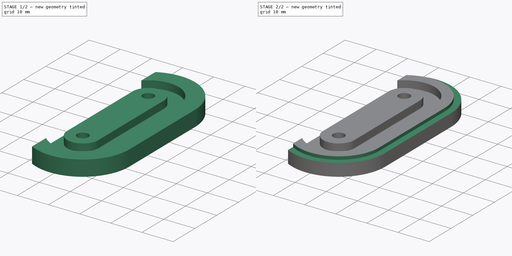
[diagram: build sequence overview — one tinted view per stage of 2, left to right]
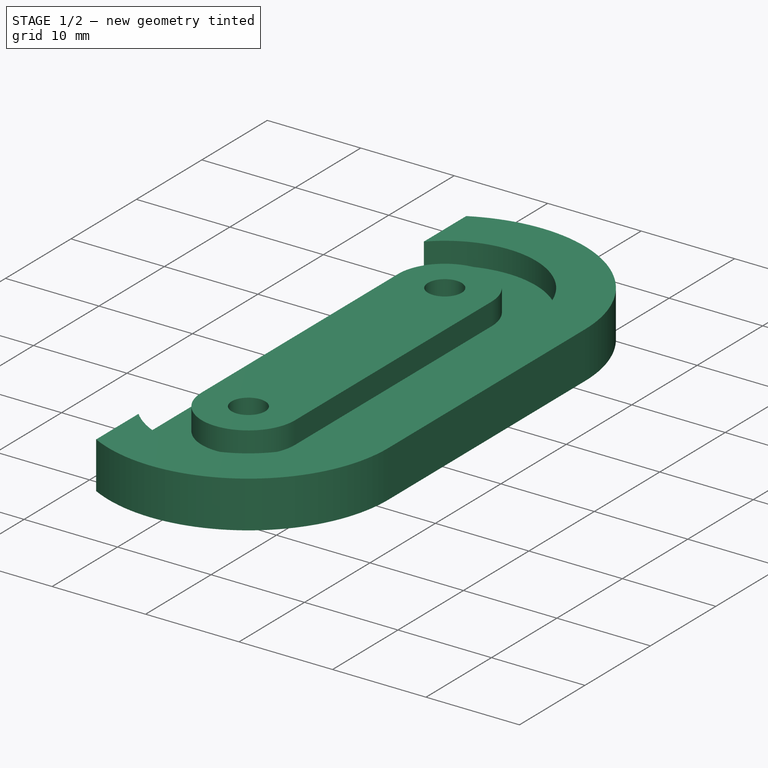
[diagram: stage 1 of 2 — iso view after this stage's code; geometry added in this stage tinted green]
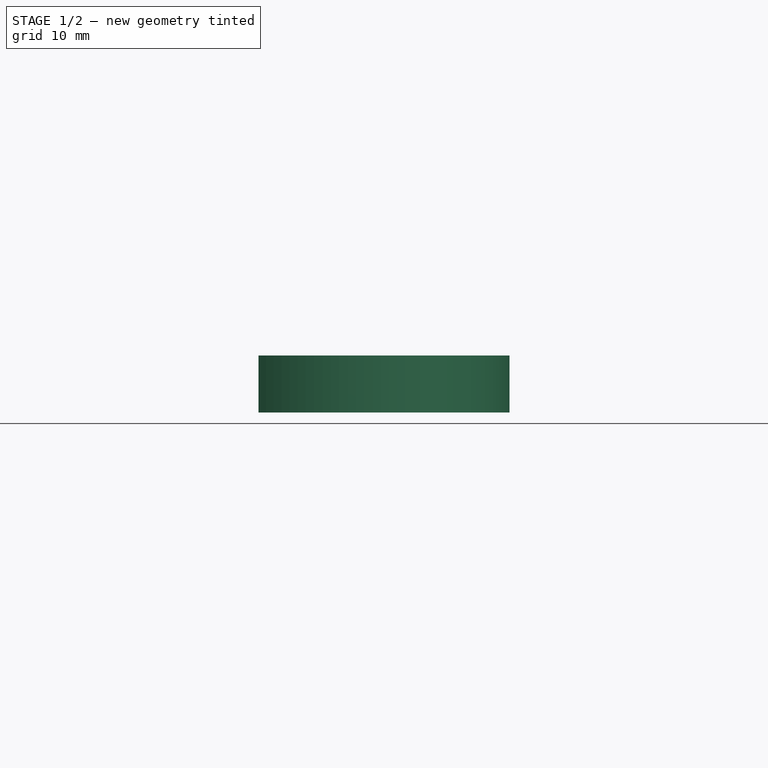
[diagram: stage 1 of 2 — front view after this stage's code; geometry added in this stage tinted green]
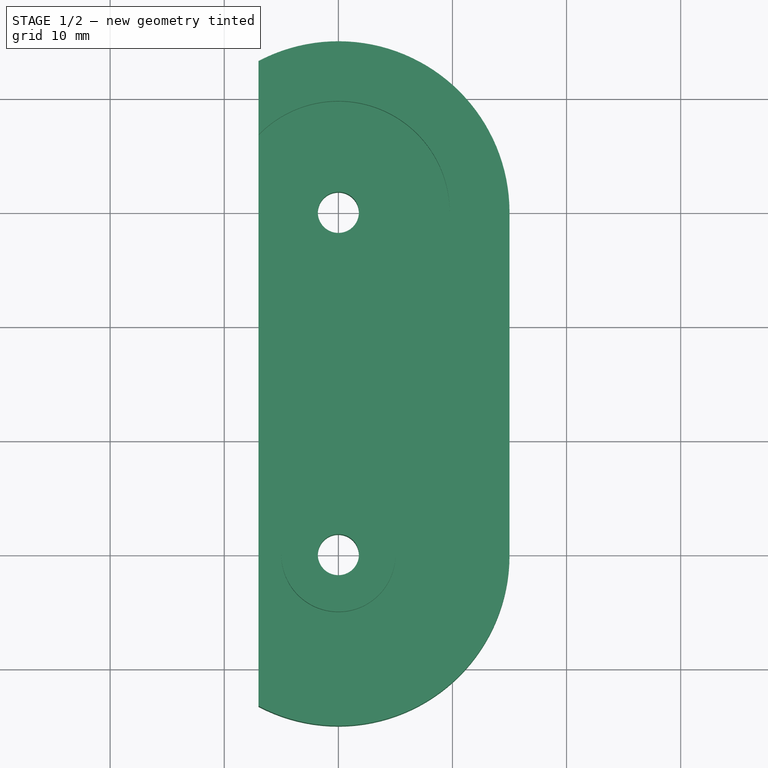
[diagram: stage 1 of 2 — top view after this stage's code; geometry added in this stage tinted green]
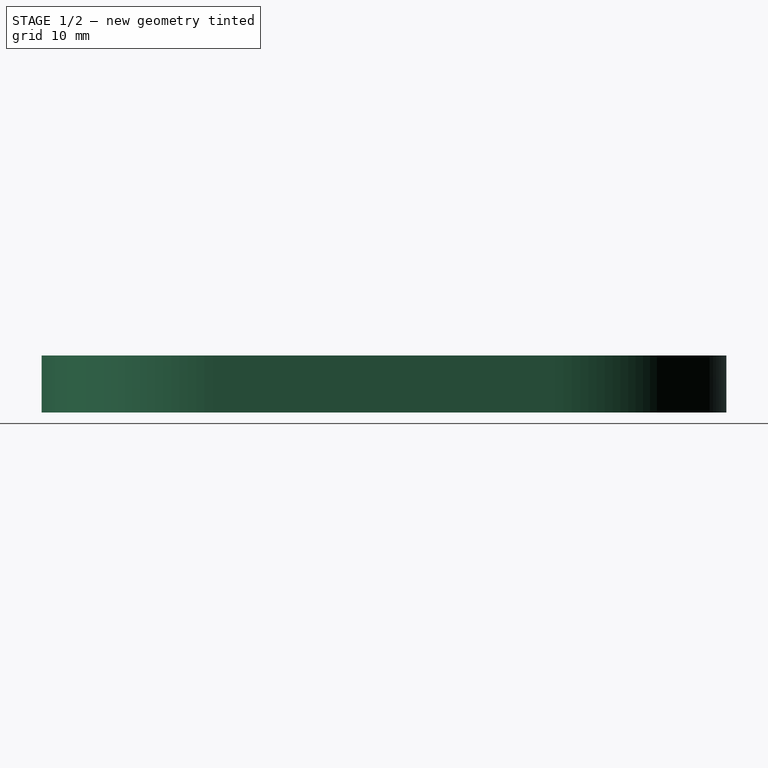
[diagram: stage 1 of 2 — right view after this stage's code; geometry added in this stage tinted green]
FCSTD DOCUMENT
Label: RecircBall
objects: Sketcher::SketchObject×4, PartDesign::Pocket×3, PartDesign::Pad×1
note: 9 computed .brp shape members not serialized (recipe doc carries the construction recipe); baked Part::Feature solids carry a one-line shape summary decoded from their .brp

FEATURE [Sketcher::SketchObject] Sketch
  sketch-geometry (9):
    g0: ArcOfCircle CenterX=0 CenterY=0 CenterZ=0 NormalX=0 NormalY=0 NormalZ=1 Radius=15 StartAngle=4.22687 EndAngle=6.28319
    g1: ArcOfCircle CenterX=0 CenterY=30 CenterZ=0 NormalX=0 NormalY=0 NormalZ=1 Radius=15 StartAngle=0 EndAngle=2.05631
    g2: LineSegment StartX=15 StartY=30 StartZ=0 EndX=15 EndY=0 EndZ=0
    g3: LineSegment StartX=-7 StartY=43.2665 StartZ=0 EndX=-7 EndY=-13.2665 EndZ=0
    g4: Circle CenterX=0 CenterY=30 CenterZ=0 NormalX=0 NormalY=0 NormalZ=1 Radius=1.8
    g5: Circle CenterX=0 CenterY=0 CenterZ=0 NormalX=0 NormalY=0 NormalZ=1 Radius=1.8
    g6: LineSegment [constr] StartX=0 StartY=30 StartZ=0 EndX=15 EndY=30 EndZ=0
    g7: LineSegment [constr] StartX=0 StartY=0 StartZ=0 EndX=15 EndY=0 EndZ=0
    g8: LineSegment [constr] StartX=0 StartY=0 StartZ=0 EndX=-7 EndY=0 EndZ=0
  constraints (25):
    c: Coincident(g2,g1)
    c: Vertical(g2)
    c: Coincident(g0,g2)
    c: Coincident(g3,g1)
    c: Coincident(g3,g0)
    c: Vertical(g3)
    c: Coincident(g4,g1)
    c: Coincident(g5,g0)
    c: Equal(g5,g4)
    c: Radius(g4) = 1.8
    c: Coincident(g6,g1)
    c: Coincident(g6,g1)
    c: Horizontal(g6)
    c: Coincident(g7,g0)
    c: Coincident(g7,g0)
    c: Horizontal(g7)
    c: Coincident(g8,g0)
    c: PointOnObject(g8,g3)
    c: Horizontal(g8)
    c: Radius(g1) = 15
    c: DistanceY(g1,g0) = -30
    c: DistanceX(g8) = -7
    c: Equal(g1,g0)
    c: DistanceX(g0) = 0
    c: DistanceY(g0) = 0
FEATURE [PartDesign::Pad] Pad
  Length = 5
  MirroredExtent = false
  Sketch = -> Sketch
FEATURE [Sketcher::SketchObject] Sketch001
  Placement = pos=(0,0,5) rot=(0,0,1;0rad)
  Support = -> Pad [Face8]
  sketch-geometry (15):
    g0: ArcOfCircle CenterX=0 CenterY=30 CenterZ=0 NormalX=0 NormalY=0 NormalZ=1 Radius=5 StartAngle=0 EndAngle=3.14159
    g1: ArcOfCircle CenterX=0 CenterY=30 CenterZ=0 NormalX=0 NormalY=0 NormalZ=1 Radius=9.76 StartAngle=0 EndAngle=3.14159
    g2: ArcOfCircle CenterX=0 CenterY=8e-12 CenterZ=0 NormalX=0 NormalY=0 NormalZ=1 Radius=5 StartAngle=3.14159 EndAngle=6.28319
    g3: ArcOfCircle CenterX=0 CenterY=8e-12 CenterZ=0 NormalX=0 NormalY=0 NormalZ=1 Radius=9.76 StartAngle=3.14159 EndAngle=6.28319
    g4: LineSegment StartX=5 StartY=30 StartZ=0 EndX=5 EndY=8e-12 EndZ=0
    g5: LineSegment StartX=9.76 StartY=30 StartZ=0 EndX=9.76 EndY=8e-12 EndZ=0
    g6: LineSegment StartX=-5 StartY=30 StartZ=0 EndX=-5 EndY=8e-12 EndZ=0
    g7: LineSegment StartX=-9.76 StartY=30 StartZ=0 EndX=-9.76 EndY=2.54016e-05 EndZ=0
    g8: LineSegment [constr] StartX=-5 StartY=30 StartZ=0 EndX=0 EndY=30 EndZ=0
    g9: LineSegment [constr] StartX=0 StartY=30 StartZ=0 EndX=5 EndY=30 EndZ=0
    g10: LineSegment [constr] StartX=-5 StartY=8e-12 StartZ=0 EndX=0 EndY=8e-12 EndZ=0
    g11: LineSegment [constr] StartX=0 StartY=8e-12 StartZ=0 EndX=5 EndY=8e-12 EndZ=0
    g12: LineSegment [constr] StartX=5 StartY=8e-12 StartZ=0 EndX=9.76 EndY=8e-12 EndZ=0
    g13: LineSegment [constr] StartX=5 StartY=30 StartZ=0 EndX=9.76 EndY=30 EndZ=0
    g14: LineSegment [constr] StartX=-9.76 StartY=30 StartZ=0 EndX=-5 EndY=30 EndZ=0
  constraints (40):
    c: Coincident(g1,g0)
    c: Coincident(g3,g2)
    c: Coincident(g4,g0)
    c: Coincident(g4,g2)
    c: Vertical(g4)
    c: Coincident(g5,g1)
    c: Coincident(g5,g3)
    c: Vertical(g5)
    c: Coincident(g6,g0)
    c: Coincident(g6,g2)
    c: Vertical(g6)
    c: Coincident(g7,g1)
    c: Coincident(g7,g3)
    c: Vertical(g7)
    c: Coincident(g8,g0)
    c: Coincident(g8,g0)
    c: Horizontal(g8)
    c: Coincident(g8,g9)
    c: Coincident(g9,g0)
    c: Horizontal(g9)
    c: Coincident(g10,g2)
    c: Coincident(g10,g2)
    c: Horizontal(g10)
    c: Coincident(g10,g11)
    c: Coincident(g11,g2)
    c: Horizontal(g11)
    c: Coincident(g12,g2)
    c: Coincident(g12,g3)
    c: Horizontal(g12)
    c: Coincident(g13,g0)
    c: Coincident(g13,g1)
    c: Horizontal(g13)
    c: DistanceX(g2) = 0
    c: DistanceY(g2) = 0
    c: DistanceY(g0,g2) = -30
    c: DistanceX(g12) = 4.76
    c: Radius(g2) = 5
    c: Coincident(g14,g1)
    c: Coincident(g14,g0)
    c: Horizontal(g14)
FEATURE [PartDesign::Pocket] Pocket
  Length = 2.38
  Sketch = -> Sketch001
  Type = 0
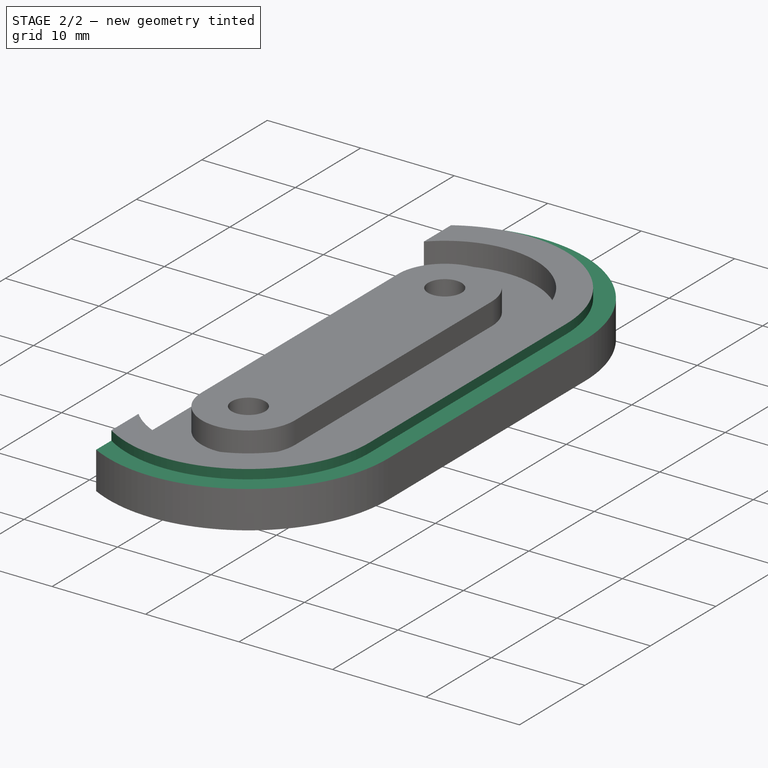
[diagram: stage 2 of 2 — iso view after this stage's code; geometry added in this stage tinted green]
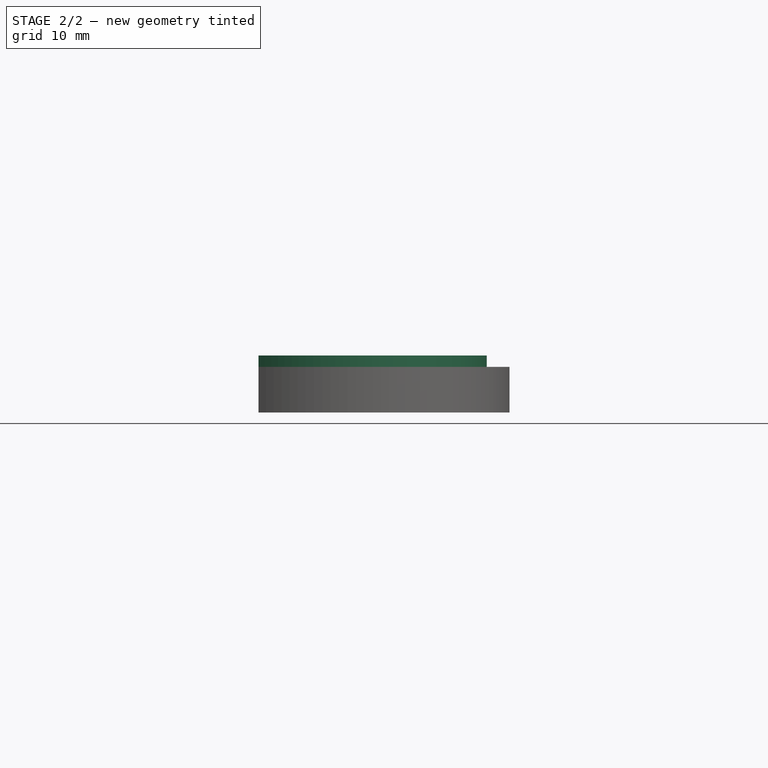
[diagram: stage 2 of 2 — front view after this stage's code; geometry added in this stage tinted green]
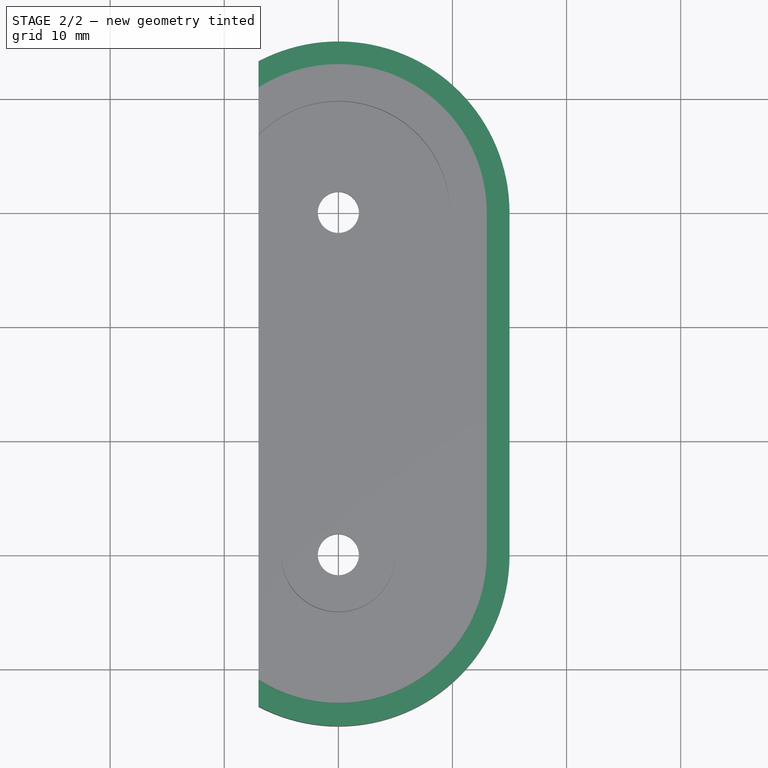
[diagram: stage 2 of 2 — top view after this stage's code; geometry added in this stage tinted green]
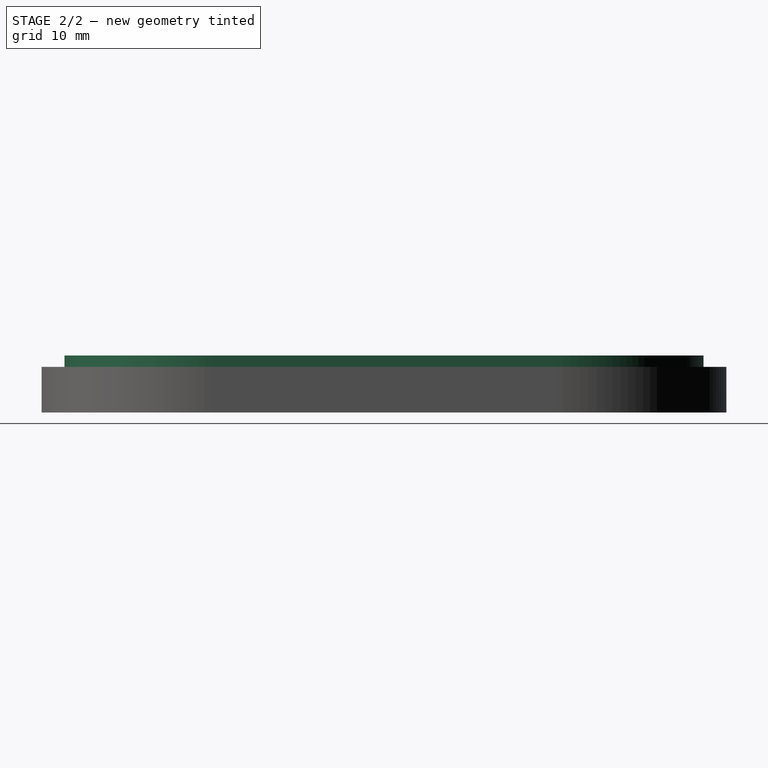
[diagram: stage 2 of 2 — right view after this stage's code; geometry added in this stage tinted green]
FEATURE [Sketcher::SketchObject] Sketch002
  Placement = pos=(0,0,5) rot=(0,0,1;0rad)
  Support = -> Pocket [Face5]
  sketch-geometry (15):
    g0: ArcOfCircle CenterX=0 CenterY=30 CenterZ=0 NormalX=0 NormalY=0 NormalZ=1 Radius=13 StartAngle=0 EndAngle=3.14159
    g1: ArcOfCircle CenterX=0 CenterY=30 CenterZ=0 NormalX=0 NormalY=0 NormalZ=1 Radius=15 StartAngle=0 EndAngle=3.14159
    g2: ArcOfCircle CenterX=0 CenterY=0 CenterZ=0 NormalX=0 NormalY=0 NormalZ=1 Radius=13 StartAngle=3.14159 EndAngle=6.28319
    g3: ArcOfCircle CenterX=0 CenterY=0 CenterZ=0 NormalX=0 NormalY=0 NormalZ=1 Radius=15 StartAngle=3.14159 EndAngle=6.28319
    g4: LineSegment StartX=15 StartY=30 StartZ=0 EndX=15 EndY=0 EndZ=0
    g5: LineSegment StartX=13 StartY=30 StartZ=0 EndX=13 EndY=0 EndZ=0
    g6: LineSegment StartX=-13 StartY=30 StartZ=0 EndX=-13 EndY=3.61383e-07 EndZ=0
    g7: LineSegment StartX=-15 StartY=30 StartZ=0 EndX=-15 EndY=3.61383e-07 EndZ=0
    g8: LineSegment [constr] StartX=-15 StartY=30 StartZ=0 EndX=-13 EndY=30 EndZ=0
    g9: LineSegment [constr] StartX=-13 StartY=30 StartZ=0 EndX=0 EndY=30 EndZ=0
    g10: LineSegment [constr] StartX=0 StartY=30 StartZ=0 EndX=13 EndY=30 EndZ=0
    g11: LineSegment [constr] StartX=13 StartY=30 StartZ=0 EndX=15 EndY=30 EndZ=0
    g12: LineSegment [constr] StartX=-15 StartY=3.61383e-07 StartZ=0 EndX=-13 EndY=3.61383e-07 EndZ=0
    g13: LineSegment [constr] StartX=13 StartY=0 StartZ=0 EndX=15 EndY=0 EndZ=0
    g14: LineSegment [constr] StartX=13 StartY=0 StartZ=0 EndX=0 EndY=0 EndZ=0
  constraints (40):
    c: Coincident(g1,g0)
    c: Coincident(g3,g2)
    c: Coincident(g4,g1)
    c: Coincident(g4,g3)
    c: Coincident(g5,g0)
    c: Coincident(g5,g2)
    c: Coincident(g6,g0)
    c: Coincident(g6,g2)
    c: Coincident(g7,g1)
    c: Coincident(g7,g3)
    c: Vertical(g7)
    c: Vertical(g6)
    c: Vertical(g5)
    c: Vertical(g4)
    c: Coincident(g8,g1)
    c: Coincident(g8,g0)
    c: Coincident(g8,g9)
    c: Coincident(g9,g0)
    c: Horizontal(g9)
    c: Coincident(g9,g10)
    c: Coincident(g10,g0)
    c: Horizontal(g10)
    c: Coincident(g10,g11)
    c: Coincident(g11,g1)
    c: Horizontal(g11)
    c: Horizontal(g8)
    c: DistanceY(g2,g0) = 30
    c: DistanceX(g2) = 0
    c: DistanceY(g2) = 0
    c: Coincident(g12,g3)
    c: Coincident(g12,g2)
    c: Horizontal(g12)
    c: Coincident(g13,g3)
    c: Horizontal(g13)
    c: Coincident(g14,g2)
    c: Coincident(g14,g2)
    c: Horizontal(g14)
    c: Coincident(g13,g2)
    c: DistanceX(g11) = 2
    c: Radius(g1) = 15
FEATURE [PartDesign::Pocket] Pocket001
  Length = 1
  Sketch = -> Sketch002
  Type = 0
FEATURE [Sketcher::SketchObject] Sketch003
  Placement = pos=(0,0,0) rot=(1,0,0;3.14159rad)
  Support = -> Pocket001 [Face1]
  sketch-geometry (13):
    g0: LineSegment StartX=-3 StartY=-1.73205 StartZ=0 EndX=-3 EndY=1.73205 EndZ=0
    g1: LineSegment StartX=-3 StartY=1.73205 StartZ=0 EndX=0 EndY=3.4641 EndZ=0
    g2: LineSegment StartX=0 StartY=3.4641 StartZ=0 EndX=3 EndY=1.73205 EndZ=0
    g3: LineSegment StartX=3 StartY=1.73205 StartZ=0 EndX=3 EndY=-1.73205 EndZ=0
    g4: LineSegment StartX=3 StartY=-1.73205 StartZ=0 EndX=0 EndY=-3.4641 EndZ=0
    g5: LineSegment StartX=0 StartY=-3.4641 StartZ=0 EndX=-3 EndY=-1.73205 EndZ=0
    g6: LineSegment [constr] StartX=-3 StartY=1.73205 StartZ=0 EndX=0 EndY=0 EndZ=0
    g7: LineSegment [constr] StartX=0 StartY=0 StartZ=0 EndX=-3 EndY=-1.73205 EndZ=0
    g8: LineSegment [constr] StartX=0 StartY=0 StartZ=0 EndX=3 EndY=1.73205 EndZ=0
    g9: LineSegment [constr] StartX=3 StartY=-1.73205 StartZ=0 EndX=0 EndY=0 EndZ=0
    g10: LineSegment [constr] StartX=0 StartY=0 StartZ=0 EndX=0 EndY=-3.4641 EndZ=0
    g11: Circle CenterX=0 CenterY=-30 CenterZ=0 NormalX=0 NormalY=0 NormalZ=1 Radius=3
    g12: LineSegment [constr] StartX=0 StartY=0 StartZ=0 EndX=0 EndY=-30 EndZ=0
  constraints (34):
    c: Vertical(g0)
    c: Coincident(g0,g1)
    c: Coincident(g1,g2)
    c: Coincident(g2,g3)
    c: Vertical(g3)
    c: Coincident(g3,g4)
    c: Coincident(g4,g5)
    c: Coincident(g5,g0)
    c: Coincident(g6,g0)
    c: Coincident(g6,g7)
    c: Coincident(g7,g0)
    c: Coincident(g8,g2)
    c: Equal(g7,g6)
    c: Equal(g6,g8)
    c: Equal(g4,g5)
    c: Equal(g5,g0)
    c: Equal(g0,g1)
    c: Equal(g1,g2)
    c: Coincident(g6,g8)
    c: DistanceX(g0,g3) = 6
    c: Coincident(g9,g3)
    c: Coincident(g9,g6)
    c: Coincident(g9,g10)
    c: Coincident(g10,g4)
    c: Vertical(g10)
    c: Equal(g9,g10)
    c: Equal(g10,g7)
    c: Radius(g11) = 3
    c: Coincident(g12,g6)
    c: Coincident(g12,g11)
    c: Vertical(g12)
    c: DistanceY(g6,g11) = -30
    c: DistanceX(g11) = 0
    c: DistanceY(g11) = -30
FEATURE [PartDesign::Pocket] Pocket002
  Length = 3
  Sketch = -> Sketch003
  Type = 0
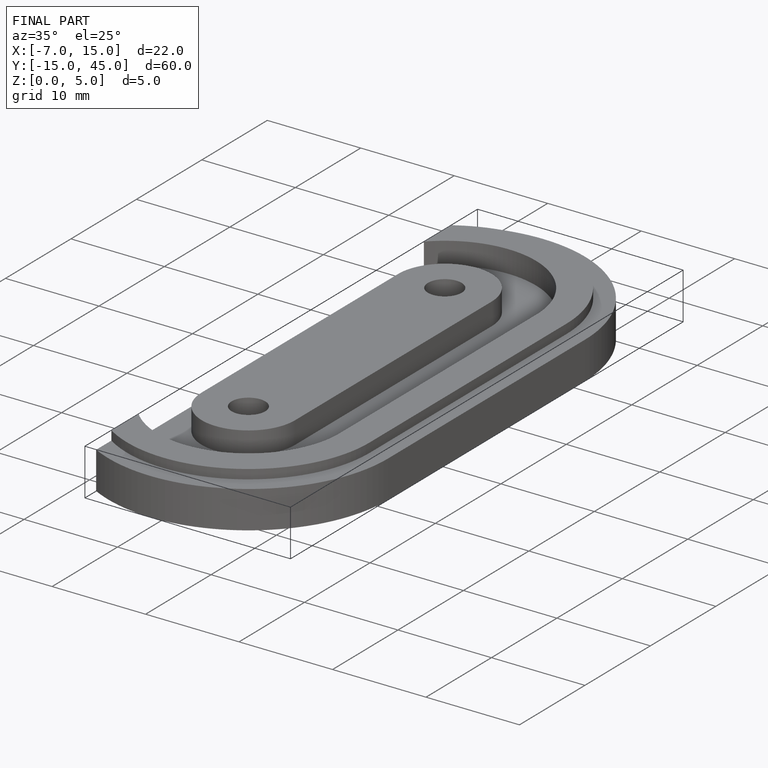
[diagram: finished part — iso view with bounding-box wireframe]
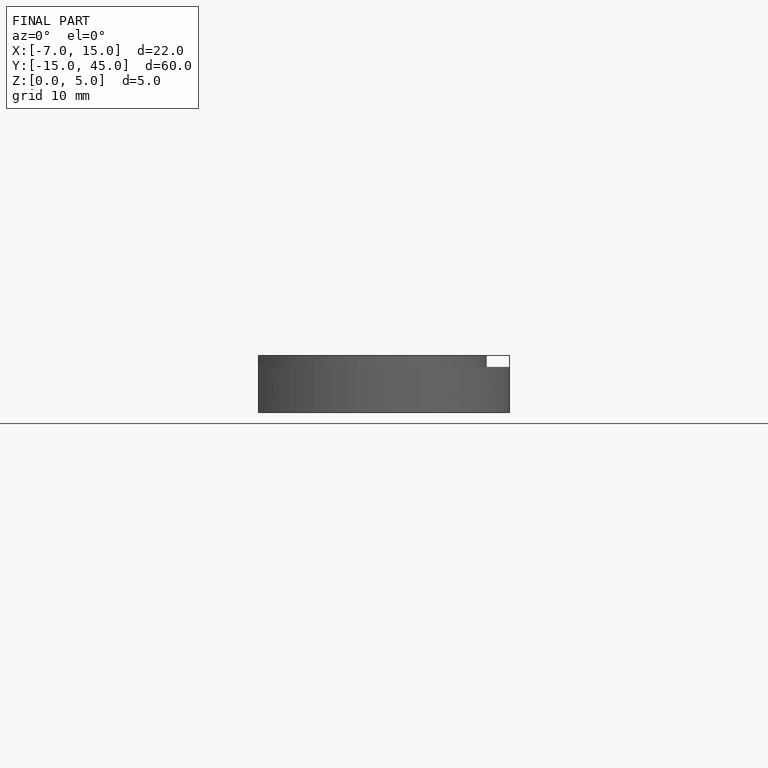
[diagram: finished part — front view with bounding-box wireframe]
